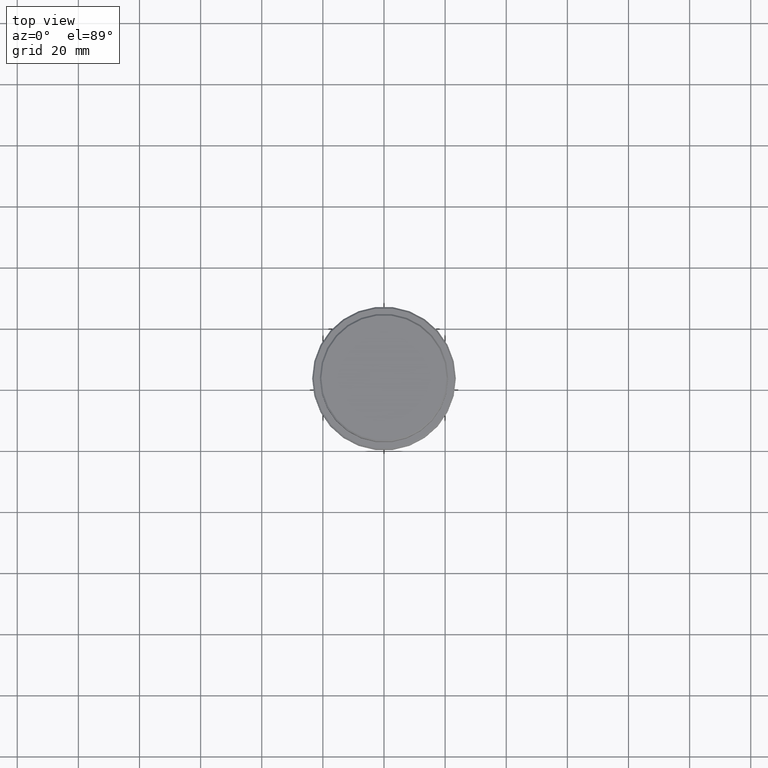
[diagram: clean part render]
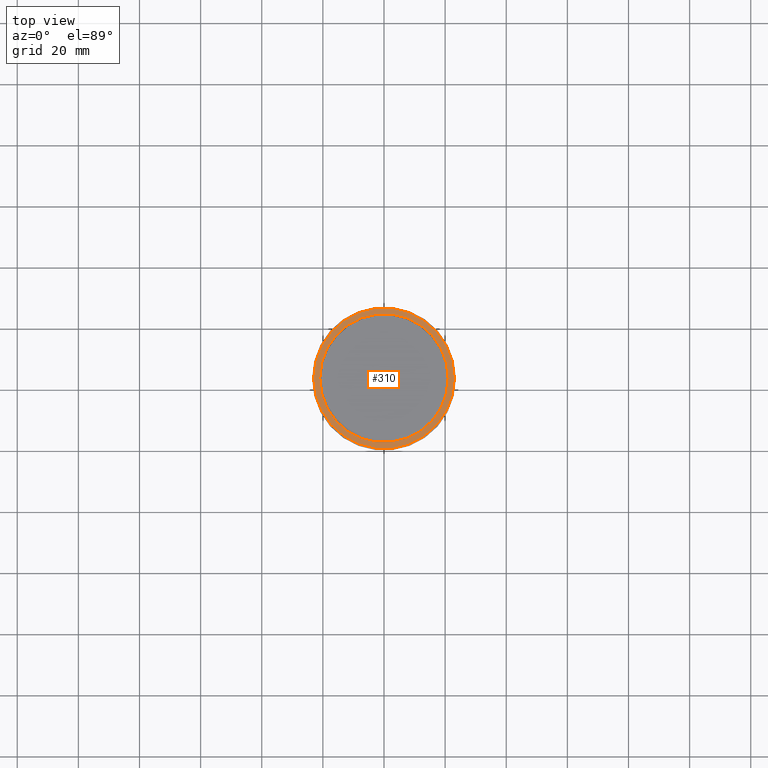
[diagram: same view with one face highlighted and labeled with its STEP entity id]
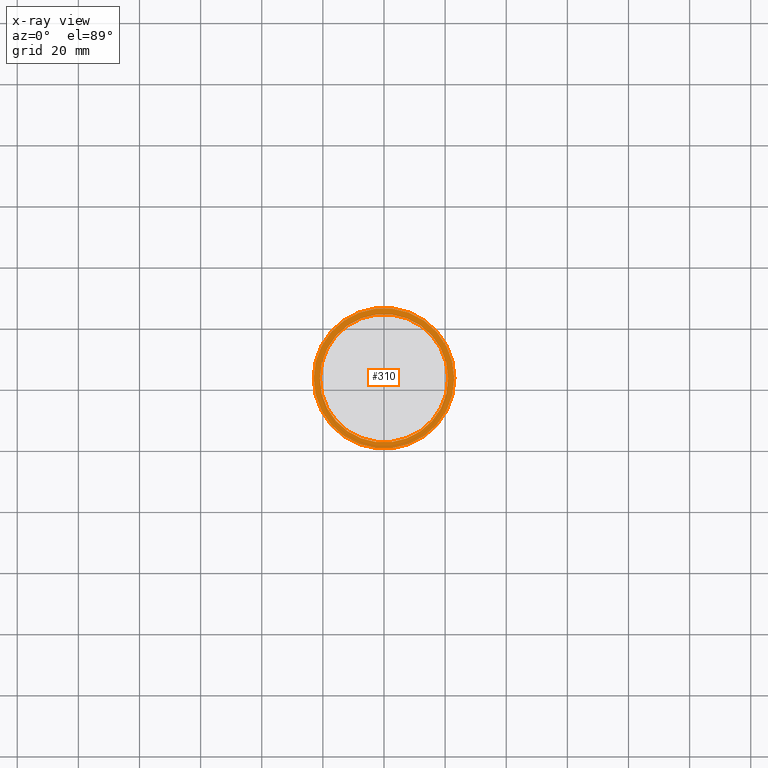
[diagram: x-ray of the same camera — body ghosted, the highlighted face saturated]
A machine part, top view. The second image highlights one B-rep face of the part: STEP entity #310.
The next image is the same camera in x-ray: the body ghosted, the highlighted face saturated — about 0% of this face is hidden behind the body in this view.
In plain terms, the highlighted planar face has unit normal (0, -0, 1).
Its self-contained STEP definition (entity closure, byte-faithful):
#6 = VERTEX_POINT ( 'NONE', #713 ) ;
#12 = DIRECTION ( 'NONE',  ( 0.000000000000000000, 0.000000000000000000, -1.000000000000000000 ) ) ;
#32 = CARTESIAN_POINT ( 'NONE',  ( 23.00000000000002487, 2.847303808017597717E-15, -9.000000000000001776 ) ) ;
#87 = ORIENTED_EDGE ( 'NONE', *, *, #660, .T. ) ;
#109 = ORIENTED_EDGE ( 'NONE', *, *, #958, .T. ) ;
#116 = CARTESIAN_POINT ( 'NONE',  ( 0.000000000000000000, 0.000000000000000000, -9.000000000000001776 ) ) ;
#133 = DIRECTION ( 'NONE',  ( -0.000000000000000000, -0.000000000000000000, 1.000000000000000000 ) ) ;
#139 = VERTEX_POINT ( 'NONE', #649 ) ;
#149 = ORIENTED_EDGE ( 'NONE', *, *, #1158, .T. ) ;
#186 = FACE_BOUND ( 'NONE', #252, .T. ) ;
#226 = AXIS2_PLACEMENT_3D ( 'NONE', #116, #12, #1189 ) ;
#236 = EDGE_LOOP ( 'NONE', ( #1331, #87 ) ) ;
#249 = EDGE_CURVE ( 'NONE', #139, #484, #477, .T. ) ;
#252 = EDGE_LOOP ( 'NONE', ( #149, #109 ) ) ;
#254 = DIRECTION ( 'NONE',  ( 0.000000000000000000, 0.000000000000000000, -1.000000000000000000 ) ) ;
#270 = AXIS2_PLACEMENT_3D ( 'NONE', #562, #254, #909 ) ;
#289 = AXIS2_PLACEMENT_3D ( 'NONE', #757, #133, #448 ) ;
#310 = ADVANCED_FACE ( 'NONE', ( #1140, #186 ), #1352, .T. ) ;
#344 = CARTESIAN_POINT ( 'NONE',  ( 20.99999999999999289, 0.000000000000000000, -9.000000000000001776 ) ) ;
#366 = CARTESIAN_POINT ( 'NONE',  ( 0.000000000000000000, 20.49999999999999645, -9.000000000000001776 ) ) ;
#431 = DIRECTION ( 'NONE',  ( -0.000000000000000000, -0.000000000000000000, 1.000000000000000000 ) ) ;
#448 = DIRECTION ( 'NONE',  ( 1.000000000000000000, 0.000000000000000000, 0.000000000000000000 ) ) ;
#477 = CIRCLE ( 'NONE', #289, 23.00000000000002487 ) ;
#484 = VERTEX_POINT ( 'NONE', #32 ) ;
#562 = CARTESIAN_POINT ( 'NONE',  ( 0.000000000000000000, 0.000000000000000000, -9.000000000000001776 ) ) ;
#604 = DIRECTION ( 'NONE',  ( 0.000000000000000000, -0.000000000000000000, 1.000000000000000000 ) ) ;
#649 = CARTESIAN_POINT ( 'NONE',  ( -23.00000000000002487, 0.000000000000000000, -9.000000000000001776 ) ) ;
#658 = VERTEX_POINT ( 'NONE', #344 ) ;
#660 = EDGE_CURVE ( 'NONE', #484, #139, #1234, .T. ) ;
#709 = CIRCLE ( 'NONE', #226, 20.99999999999999289 ) ;
#713 = CARTESIAN_POINT ( 'NONE',  ( -20.99999999999999289, 2.571758278209440872E-15, -9.000000000000001776 ) ) ;
#727 = CIRCLE ( 'NONE', #270, 20.99999999999999289 ) ;
#757 = CARTESIAN_POINT ( 'NONE',  ( 0.000000000000000000, 0.000000000000000000, -9.000000000000001776 ) ) ;
#766 = AXIS2_PLACEMENT_3D ( 'NONE', #366, #604, #1357 ) ;
#909 = DIRECTION ( 'NONE',  ( 1.000000000000000000, 0.000000000000000000, 0.000000000000000000 ) ) ;
#949 = CARTESIAN_POINT ( 'NONE',  ( 0.000000000000000000, 0.000000000000000000, -9.000000000000001776 ) ) ;
#958 = EDGE_CURVE ( 'NONE', #6, #658, #709, .T. ) ;
#1140 = FACE_OUTER_BOUND ( 'NONE', #236, .T. ) ;
#1158 = EDGE_CURVE ( 'NONE', #658, #6, #727, .T. ) ;
#1189 = DIRECTION ( 'NONE',  ( 1.000000000000000000, 0.000000000000000000, 0.000000000000000000 ) ) ;
#1190 = DIRECTION ( 'NONE',  ( 1.000000000000000000, 0.000000000000000000, 0.000000000000000000 ) ) ;
#1234 = CIRCLE ( 'NONE', #1372, 23.00000000000002487 ) ;
#1331 = ORIENTED_EDGE ( 'NONE', *, *, #249, .T. ) ;
#1352 = PLANE ( 'NONE',  #766 ) ;
#1357 = DIRECTION ( 'NONE',  ( 1.000000000000000000, 0.000000000000000000, 0.000000000000000000 ) ) ;
#1372 = AXIS2_PLACEMENT_3D ( 'NONE', #949, #431, #1190 ) ;